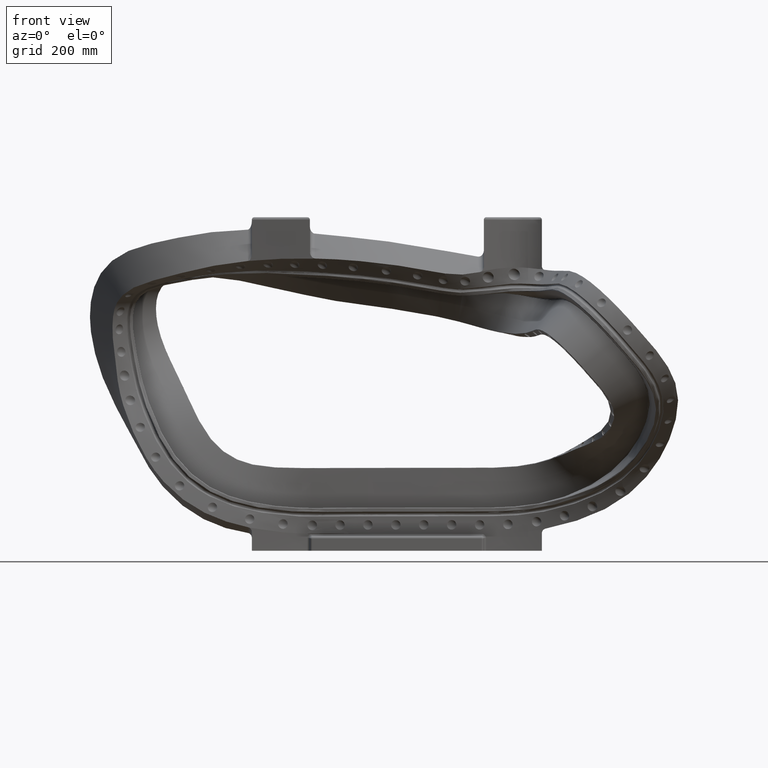
[diagram: clean part render]
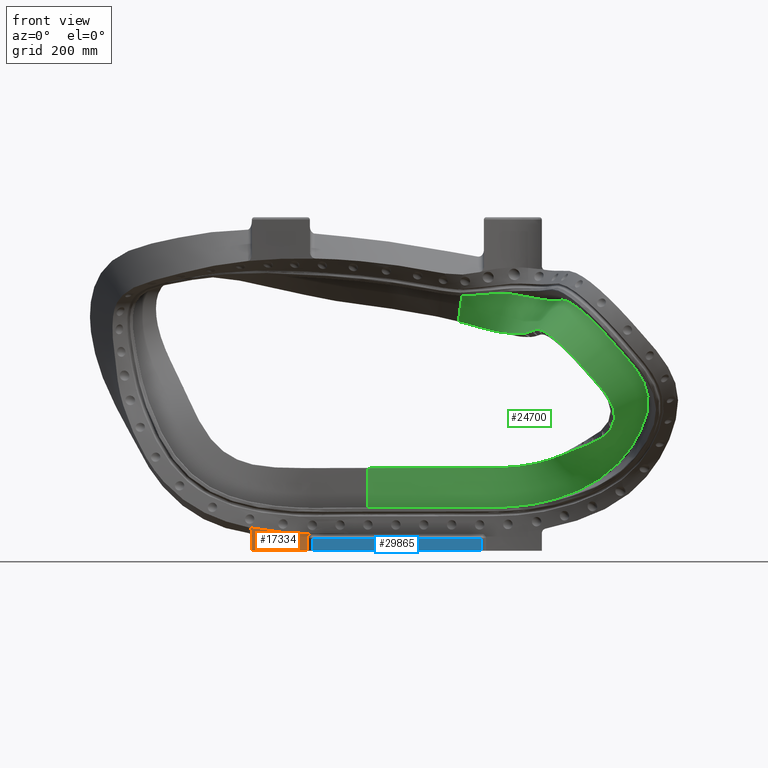
[diagram: same view with three faces highlighted in distinct colors, each labeled with its STEP entity id]
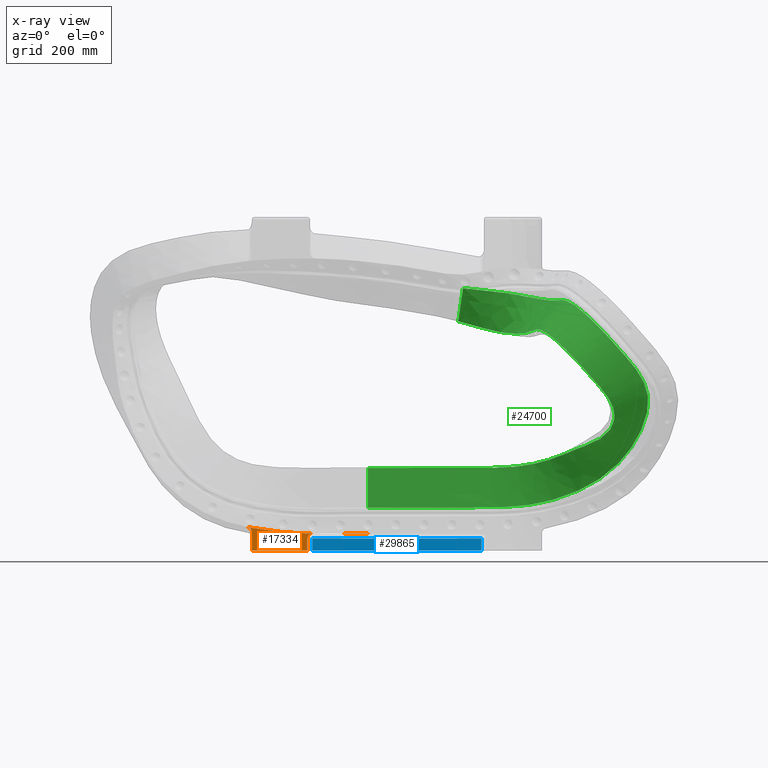
[diagram: x-ray of the same camera — body ghosted, the three highlighted faces saturated]
A machine part, front view with three faces highlighted in distinct colors.
The next image is the same camera in x-ray (body ghosted, the three faces saturated) — at least one of them is partly hidden behind the body in this view.
Their STEP definitions:

[orange] entity #17334 — the highlighted face is a SurfaceOfExtrusion surface.
#1130=CARTESIAN_POINT('',(6.633869642651E-3,-1.977049172209E0,
-1.570088924558E1));
#1961=CARTESIAN_POINT('',(-1.524058637604E0,-1.970531978263E0,
-1.570521095900E1));
#1962=CARTESIAN_POINT('',(-1.496021991823E0,-1.970852049172E0,
-1.570505768096E1));
#1963=CARTESIAN_POINT('',(-9.863184144507E-1,-1.976428644218E0,
-1.570212366842E1));
#1964=CARTESIAN_POINT('',(-4.758212423199E-1,-1.977570727684E0,
-1.570135270015E1));
#1965=CARTESIAN_POINT('',(6.633869642651E-3,-1.977049172209E0,
-1.570088924558E1));
#1967=CARTESIAN_POINT('',(-1.524058637604E0,-1.970531978263E0,
-1.570521095900E1));
#1968=CARTESIAN_POINT('',(-1.977823508163E0,-1.965351724679E0,
-1.570769171887E1));
#1969=CARTESIAN_POINT('',(-2.910966157197E0,-1.947589752213E0,
-1.571554917479E1));
#1970=CARTESIAN_POINT('',(-4.308576527693E0,-1.907689672695E0,
-1.573531920155E1));
#1971=CARTESIAN_POINT('',(-5.491112450047E0,-1.905281624804E0,
-1.574527169072E1));
#1972=CARTESIAN_POINT('',(-6.213062513903E0,-1.944512228271E0,
-1.573615508970E1));
#1973=CARTESIAN_POINT('',(-6.456287617938E0,-1.962434598659E0,
-1.573085528941E1));
#1975=CARTESIAN_POINT('',(-8.736462124929E0,-2.248535672561E0,
-1.560412003335E1));
#1976=CARTESIAN_POINT('',(-8.200656300199E0,-2.164108854057E0,
-1.565314848819E1));
#1977=CARTESIAN_POINT('',(-7.434383356327E0,-2.048440237838E0,
-1.570285805546E1));
#1978=CARTESIAN_POINT('',(-6.699007403185E0,-1.980319733949E0,
-1.572556649985E1));
#1979=CARTESIAN_POINT('',(-6.456287617938E0,-1.962434598659E0,
-1.573085528941E1));
#1981=CARTESIAN_POINT('',(-1.200000000015E1,-2.647033189302E0,
-1.514517763176E1));
#1982=CARTESIAN_POINT('',(-1.145361283427E1,-2.616051993306E0,
-1.525047488670E1));
#1983=CARTESIAN_POINT('',(-1.030305122192E1,-2.501717737579E0,
-1.543591313101E1));
#1984=CARTESIAN_POINT('',(-9.272441828146E0,-2.332989889064E0,
-1.555507566790E1));
#1985=CARTESIAN_POINT('',(-8.736462124929E0,-2.248535672561E0,
-1.560412003335E1));
#1987=CARTESIAN_POINT('',(-1.240259805060E1,-2.665795870534E0,
-1.506549918279E1));
#1988=CARTESIAN_POINT('',(-1.237528953494E1,-2.664808068633E0,
-1.507118487275E1));
#1989=CARTESIAN_POINT('',(-1.223762308059E1,-2.659564521791E0,
-1.509798818524E1));
#1990=CARTESIAN_POINT('',(-1.210579466065E1,-2.653031948638E0,
-1.512478936491E1));
#1991=CARTESIAN_POINT('',(-1.200000000015E1,-2.647033189302E0,
-1.514517763176E1));
#2065=DIRECTION('',(-1.531559234993E-9,2.400031942076E-8,-1.E0));
#2066=VECTOR('',#2065,1.249999999999E0);
#2067=CARTESIAN_POINT('',(-6.265921046707E0,-1.949419170606E0,-1.625E1));
#2068=LINE('',#2067,#2066);
#2069=DIRECTION('',(0.E0,-3.146995162287E-12,1.E0));
#2070=VECTOR('',#2069,1.936243220636E0);
#2071=CARTESIAN_POINT('',(-1.2E1,-2.647024992295E0,-1.75E1));
#2072=LINE('',#2071,#2070);
#2073=DIRECTION('',(1.268013437507E-3,-2.568267119068E-4,9.999991630906E-1));
#2074=VECTOR('',#2073,4.911079551889E-2);
#2075=CARTESIAN_POINT('',(6.571596494007E-3,-1.977036559245E0,-1.575E1));
#2076=LINE('',#2075,#2074);
#2077=CARTESIAN_POINT('',(6.571596494007E-3,-1.977036559245E0,-1.575E1));
#2078=CARTESIAN_POINT('',(-4.755956193564E-1,-1.977557528766E0,-1.575E1));
#2079=CARTESIAN_POINT('',(-1.438149512107E0,-1.975810008502E0,-1.575E1));
#2080=CARTESIAN_POINT('',(-2.876349262754E0,-1.947268892235E0,-1.575E1));
#2081=CARTESIAN_POINT('',(-4.306513704890E0,-1.912465072263E0,
-1.575000000001E1));
#2082=CARTESIAN_POINT('',(-5.267236932274E0,-1.895331262389E0,
-1.574999999998E1));
#2083=CARTESIAN_POINT('',(-5.750368697505E0,-1.923896965656E0,-1.575E1));
#2084=CARTESIAN_POINT('',(-5.759267295604E0,-1.924227663681E0,-1.575E1));
#2086=CARTESIAN_POINT('',(-6.265921046707E0,-1.949419170606E0,-1.625E1));
#2087=CARTESIAN_POINT('',(-6.265920580971E0,-1.949419442067E0,
-1.622502273582E1));
#2088=CARTESIAN_POINT('',(-6.262237611742E0,-1.949183281656E0,
-1.617385003149E1));
#2089=CARTESIAN_POINT('',(-6.242444727528E0,-1.947929128483E0,
-1.609130162909E1));
#2090=CARTESIAN_POINT('',(-6.206523883120E0,-1.945704867341E0,
-1.600929443438E1));
#2091=CARTESIAN_POINT('',(-6.154576729872E0,-1.942607445972E0,
-1.593269051651E1));
#2092=CARTESIAN_POINT('',(-6.088480295302E0,-1.938879642136E0,
-1.586612645808E1));
#2093=CARTESIAN_POINT('',(-6.010982056611E0,-1.934784245329E0,
-1.581279231011E1));
#2094=CARTESIAN_POINT('',(-5.926529040739E0,-1.930768283350E0,
-1.577516585714E1));
#2095=CARTESIAN_POINT('',(-5.840093104835E0,-1.926760113830E0,
-1.575401799421E1));
#2096=CARTESIAN_POINT('',(-5.785892567050E0,-1.925217535012E0,
-1.575000051220E1));
#2097=CARTESIAN_POINT('',(-5.759267295604E0,-1.924227663681E0,-1.575E1));
#6934=CARTESIAN_POINT('',(-1.240259805060E1,-2.665795870534E0,
-1.506549918279E1));
#7265=CARTESIAN_POINT('',(-1.240259805060E1,-2.665795870534E0,
-1.506549918279E1));
#7266=CARTESIAN_POINT('',(-1.235784088946E1,-2.664179526992E0,
-1.507481743922E1));
#7267=CARTESIAN_POINT('',(-1.226962819016E1,-2.660668391725E0,
-1.510537353191E1));
#7268=CARTESIAN_POINT('',(-1.215714685356E1,-2.655429812906E0,
-1.518598117435E1));
#7269=CARTESIAN_POINT('',(-1.206917701766E1,-2.650885646823E0,
-1.529399363753E1));
#7270=CARTESIAN_POINT('',(-1.201267457428E1,-2.647752351809E0,
-1.542425525027E1));
#7271=CARTESIAN_POINT('',(-1.2E1,-2.647024992301E0,-1.551725603750E1));
#7272=CARTESIAN_POINT('',(-1.2E1,-2.647024992301E0,-1.556375677936E1));
#7283=CARTESIAN_POINT('',(-1.2E1,-2.647024992301E0,-1.556375677936E1));
#7336=CARTESIAN_POINT('',(-1.2E1,-2.647024992295E0,-1.75E1));
#7337=CARTESIAN_POINT('',(-1.147515806822E1,-2.617162721085E0,-1.75E1));
#7338=CARTESIAN_POINT('',(-1.065975321890E1,-2.538681203800E0,-1.75E1));
#7339=CARTESIAN_POINT('',(-9.574770886855E0,-2.382282303911E0,-1.75E1));
#7340=CARTESIAN_POINT('',(-8.498140849961E0,-2.209587277860E0,-1.75E1));
#7341=CARTESIAN_POINT('',(-7.402576861671E0,-2.042113127539E0,-1.75E1));
#7342=CARTESIAN_POINT('',(-6.575390467964E0,-1.969167538538E0,-1.75E1));
#7343=CARTESIAN_POINT('',(-6.265921048622E0,-1.949419140605E0,-1.75E1));
#12441=CARTESIAN_POINT('',(-1.2E1,-2.647024992295E0,-1.75E1));
#12443=VERTEX_POINT('',#12441);
#12444=VERTEX_POINT('',#1967);
#12445=VERTEX_POINT('',#1973);
#12446=VERTEX_POINT('',#1975);
#12458=VERTEX_POINT('',#1130);
#12507=VERTEX_POINT('',#6934);
#12509=VERTEX_POINT('',#7283);
#12511=VERTEX_POINT('',#1991);
#12548=CARTESIAN_POINT('',(-6.265921046707E0,-1.949419170606E0,-1.625E1));
#12549=CARTESIAN_POINT('',(-6.265921048622E0,-1.949419140605E0,-1.75E1));
#12550=VERTEX_POINT('',#12548);
#12551=VERTEX_POINT('',#12549);
#12554=VERTEX_POINT('',#2077);
#12555=VERTEX_POINT('',#2084);
#17295=CARTESIAN_POINT('',(1.311590125153E-1,-1.976880632687E0,-1.75E1));
#17296=CARTESIAN_POINT('',(8.967150450688E-2,-1.976947593488E0,-1.75E1));
#17297=CARTESIAN_POINT('',(-4.340237439329E-1,-1.977662825170E0,-1.75E1));
#17298=CARTESIAN_POINT('',(-1.438124304033E0,-1.975425834373E0,-1.75E1));
#17299=CARTESIAN_POINT('',(-2.876292679866E0,-1.948586517986E0,-1.75E1));
#17300=CARTESIAN_POINT('',(-4.306721503954E0,-1.907631379646E0,-1.75E1));
#17301=CARTESIAN_POINT('',(-5.746072482765E0,-1.904990248919E0,-1.75E1));
#17302=CARTESIAN_POINT('',(-7.226584618145E0,-2.015209950945E0,-1.75E1));
#17303=CARTESIAN_POINT('',(-8.498140849961E0,-2.209587277860E0,-1.75E1));
#17304=CARTESIAN_POINT('',(-9.574770886855E0,-2.382282303911E0,-1.75E1));
#17305=CARTESIAN_POINT('',(-1.065975321890E1,-2.538681203800E0,-1.75E1));
#17306=CARTESIAN_POINT('',(-1.165131106074E1,-2.634117187495E0,-1.75E1));
#17307=CARTESIAN_POINT('',(-1.235313366270E1,-2.664786272282E0,-1.75E1));
#17308=CARTESIAN_POINT('',(-1.252983186009E1,-2.669998999699E0,-1.75E1));
#17310=DIRECTION('',(0.E0,0.E0,1.E0));
#17311=VECTOR('',#17310,1.E0);
#17312=SURFACE_OF_LINEAR_EXTRUSION('',#17309,#17311);
#17314=ORIENTED_EDGE('',*,*,#17313,.T.);
#17316=ORIENTED_EDGE('',*,*,#17315,.F.);
#17318=ORIENTED_EDGE('',*,*,#17317,.T.);
#17320=ORIENTED_EDGE('',*,*,#17319,.F.);
#17321=ORIENTED_EDGE('',*,*,#16637,.T.);
#17322=ORIENTED_EDGE('',*,*,#16635,.T.);
#17323=ORIENTED_EDGE('',*,*,#16633,.T.);
#17324=ORIENTED_EDGE('',*,*,#16631,.F.);
#17325=ORIENTED_EDGE('',*,*,#16629,.T.);
#17327=ORIENTED_EDGE('',*,*,#17326,.F.);
#17329=ORIENTED_EDGE('',*,*,#17328,.T.);
#17331=ORIENTED_EDGE('',*,*,#17330,.F.);
#17332=EDGE_LOOP('',(#17314,#17316,#17318,#17320,#17321,#17322,#17323,#17324,
#17325,#17327,#17329,#17331));
#17333=FACE_OUTER_BOUND('',#17332,.F.);
#17334=ADVANCED_FACE('',(#17333),#17312,.F.);
#1966=B_SPLINE_CURVE_WITH_KNOTS('',3,(#1961,#1962,#1963,#1964,#1965),
.UNSPECIFIED.,.F.,.F.,(4,1,4),(0.E0,5.503152349906E-2,1.E0),.UNSPECIFIED.);
#1974=B_SPLINE_CURVE_WITH_KNOTS('',3,(#1967,#1968,#1969,#1970,#1971,#1972,
#1973),.UNSPECIFIED.,.F.,.F.,(4,1,1,1,4),(0.E0,2.737381605268E-1,
5.642196854171E-1,8.545725810915E-1,1.E0),.UNSPECIFIED.);
#1980=B_SPLINE_CURVE_WITH_KNOTS('',3,(#1975,#1976,#1977,#1978,#1979),
.UNSPECIFIED.,.F.,.F.,(4,1,4),(0.E0,6.667935385238E-1,1.E0),.UNSPECIFIED.);
#1986=B_SPLINE_CURVE_WITH_KNOTS('',3,(#1981,#1982,#1983,#1984,#1985),
.UNSPECIFIED.,.F.,.F.,(4,1,4),(0.E0,4.557097369019E-1,1.E0),.UNSPECIFIED.);
#1992=B_SPLINE_CURVE_WITH_KNOTS('',3,(#1987,#1988,#1989,#1990,#1991),
.UNSPECIFIED.,.F.,.F.,(4,1,4),(0.E0,2.020968347580E-1,1.E0),.UNSPECIFIED.);
#2085=B_SPLINE_CURVE_WITH_KNOTS('',3,(#2077,#2078,#2079,#2080,#2081,#2082,#2083,
#2084),.UNSPECIFIED.,.F.,.F.,(4,1,1,1,1,4),(0.E0,2.508461314376E-1,
5.007609961811E-1,7.482724281580E-1,9.953679535417E-1,1.E0),.UNSPECIFIED.);
#2098=B_SPLINE_CURVE_WITH_KNOTS('',3,(#2086,#2087,#2088,#2089,#2090,#2091,#2092,
#2093,#2094,#2095,#2096,#2097),.UNSPECIFIED.,.F.,.F.,(4,1,1,1,1,1,1,1,1,4),
(0.E0,1.111111111111E-1,2.222222222222E-1,3.333333333333E-1,4.444444444444E-1,
5.555555555556E-1,6.666666666667E-1,7.777777777778E-1,8.888888888889E-1,1.E0),
.UNSPECIFIED.);
#7273=B_SPLINE_CURVE_WITH_KNOTS('',3,(#7265,#7266,#7267,#7268,#7269,#7270,#7271,
#7272),.UNSPECIFIED.,.F.,.F.,(4,1,1,1,1,4),(0.E0,2.E-1,4.E-1,6.E-1,8.E-1,1.E0),
.UNSPECIFIED.);
#7344=B_SPLINE_CURVE_WITH_KNOTS('',3,(#7336,#7337,#7338,#7339,#7340,#7341,#7342,
#7343),.UNSPECIFIED.,.F.,.F.,(4,1,1,1,1,4),(0.E0,2.728814048408E-1,
4.248065996874E-1,5.691375269458E-1,8.390431496893E-1,1.E0),.UNSPECIFIED.);
#16629=EDGE_CURVE('',#12444,#12458,#1966,.T.);
#16631=EDGE_CURVE('',#12444,#12445,#1974,.T.);
#16633=EDGE_CURVE('',#12446,#12445,#1980,.T.);
#16635=EDGE_CURVE('',#12511,#12446,#1986,.T.);
#16637=EDGE_CURVE('',#12507,#12511,#1992,.T.);
#17309=B_SPLINE_CURVE_WITH_KNOTS('',3,(#17295,#17296,#17297,#17298,#17299,
#17300,#17301,#17302,#17303,#17304,#17305,#17306,#17307,#17308),.UNSPECIFIED.,
.F.,.F.,(4,1,1,1,1,1,1,1,1,1,1,4),(0.E0,9.795162946880E-3,1.236435943627E-1,
2.370595985496E-1,3.493848803381E-1,4.615214159950E-1,5.767302579514E-1,
6.994645522518E-1,7.650962138775E-1,8.341812199118E-1,9.582686928232E-1,1.E0),
.UNSPECIFIED.);
#17313=EDGE_CURVE('',#12550,#12551,#2068,.T.);
#17315=EDGE_CURVE('',#12443,#12551,#7344,.T.);
#17317=EDGE_CURVE('',#12443,#12509,#2072,.T.);
#17319=EDGE_CURVE('',#12507,#12509,#7273,.T.);
#17326=EDGE_CURVE('',#12554,#12458,#2076,.T.);
#17328=EDGE_CURVE('',#12554,#12555,#2085,.T.);
#17330=EDGE_CURVE('',#12550,#12555,#2098,.T.);

[blue] entity #29865 — the highlighted planar face has unit normal (0, -1, 0).
#7354=DIRECTION('',(-1.E0,0.E0,0.E0));
#7355=VECTOR('',#7354,1.75E1);
#7356=CARTESIAN_POINT('',(1.175E1,-4.5E0,-1.75E1));
#7357=LINE('',#7356,#7355);
#7521=DIRECTION('',(0.E0,0.E0,1.E0));
#7522=VECTOR('',#7521,1.25E0);
#7523=CARTESIAN_POINT('',(-5.75E0,-4.5E0,-1.75E1));
#7524=LINE('',#7523,#7522);
#7525=DIRECTION('',(1.E0,0.E0,0.E0));
#7526=VECTOR('',#7525,1.75E1);
#7527=CARTESIAN_POINT('',(-5.75E0,-4.5E0,-1.625E1));
#7528=LINE('',#7527,#7526);
#7529=DIRECTION('',(0.E0,0.E0,1.E0));
#7530=VECTOR('',#7529,1.25E0);
#7531=CARTESIAN_POINT('',(1.175E1,-4.5E0,-1.75E1));
#7532=LINE('',#7531,#7530);
#12524=CARTESIAN_POINT('',(-5.75E0,-4.5E0,-1.75E1));
#12525=CARTESIAN_POINT('',(-5.75E0,-4.5E0,-1.625E1));
#12526=VERTEX_POINT('',#12524);
#12527=VERTEX_POINT('',#12525);
#12528=CARTESIAN_POINT('',(1.175E1,-4.5E0,-1.75E1));
#12529=CARTESIAN_POINT('',(1.175E1,-4.5E0,-1.625E1));
#12530=VERTEX_POINT('',#12528);
#12531=VERTEX_POINT('',#12529);
#29852=CARTESIAN_POINT('',(1.2E1,-4.5E0,-1.75E1));
#29853=DIRECTION('',(0.E0,-1.E0,0.E0));
#29854=DIRECTION('',(-1.E0,0.E0,0.E0));
#29855=AXIS2_PLACEMENT_3D('',#29852,#29853,#29854);
#29856=PLANE('',#29855);
#29858=ORIENTED_EDGE('',*,*,#29857,.T.);
#29860=ORIENTED_EDGE('',*,*,#29859,.T.);
#29861=ORIENTED_EDGE('',*,*,#29843,.F.);
#29862=ORIENTED_EDGE('',*,*,#29712,.T.);
#29863=EDGE_LOOP('',(#29858,#29860,#29861,#29862));
#29864=FACE_OUTER_BOUND('',#29863,.F.);
#29865=ADVANCED_FACE('',(#29864),#29856,.T.);
#29712=EDGE_CURVE('',#12530,#12526,#7357,.T.);
#29843=EDGE_CURVE('',#12530,#12531,#7532,.T.);
#29857=EDGE_CURVE('',#12526,#12527,#7524,.T.);
#29859=EDGE_CURVE('',#12527,#12531,#7528,.T.);

[green] entity #24700 — the highlighted face is a freeform B-spline surface patch.
#5556=CARTESIAN_POINT('',(-2.440734990011E-3,-3.746051807750E-1,
-8.953658931555E0));
#5557=CARTESIAN_POINT('',(8.685037972877E-2,-3.746055360460E-1,
-8.953550051578E0));
#5558=CARTESIAN_POINT('',(3.546807523685E-1,-3.746205007015E-1,
-8.953229397354E0));
#5559=CARTESIAN_POINT('',(8.902464262214E-1,-3.747107721526E-1,
-8.952601086036E0));
#5560=CARTESIAN_POINT('',(1.604080868140E0,-3.748627749791E-1,
-8.951691298588E0));
#5561=CARTESIAN_POINT('',(2.406994381400E0,-3.749364110344E-1,
-8.950419952992E0));
#5562=CARTESIAN_POINT('',(3.209920955685E0,-3.750276862451E-1,
-8.948930336478E0));
#5563=CARTESIAN_POINT('',(4.013014964831E0,-3.752111491395E-1,
-8.947268097503E0));
#5564=CARTESIAN_POINT('',(4.816364759469E0,-3.756148546448E-1,
-8.945523182799E0));
#5565=CARTESIAN_POINT('',(5.620201876316E0,-3.761362784271E-1,
-8.943848698686E0));
#5566=CARTESIAN_POINT('',(6.424853653039E0,-3.766007591824E-1,
-8.942430807503E0));
#5567=CARTESIAN_POINT('',(7.230547258425E0,-3.763567159772E-1,
-8.941562481816E0));
#5568=CARTESIAN_POINT('',(8.037469952152E0,-3.746807080205E-1,
-8.941544480528E0));
#5569=CARTESIAN_POINT('',(8.844878012355E0,-3.706232810045E-1,
-8.942582173818E0));
#5570=CARTESIAN_POINT('',(9.651651117424E0,-3.638050438902E-1,
-8.944642866435E0));
#5571=CARTESIAN_POINT('',(1.045514834662E1,-3.552440358417E-1,
-8.947119126169E0));
#5572=CARTESIAN_POINT('',(1.125253974364E1,-3.476355010723E-1,
-8.948681338352E0));
#5573=CARTESIAN_POINT('',(1.204020446638E1,-3.460079543170E-1,
-8.947102697867E0));
#5574=CARTESIAN_POINT('',(1.281482024822E1,-3.565774769020E-1,
-8.939234902081E0));
#5575=CARTESIAN_POINT('',(1.357293652932E1,-3.867068664436E-1,
-8.921263011813E0));
#5576=CARTESIAN_POINT('',(1.431176013926E1,-4.432765965381E-1,
-8.889151198038E0));
#5577=CARTESIAN_POINT('',(1.502859754934E1,-5.331179249962E-1,
-8.838834290221E0));
#5578=CARTESIAN_POINT('',(1.572255613950E1,-6.616596514144E-1,
-8.767344705131E0));
#5579=CARTESIAN_POINT('',(1.639274305059E1,-8.338789875421E-1,
-8.672444287417E0));
#5580=CARTESIAN_POINT('',(1.703941039863E1,-1.053685317727E0,
-8.553856049905E0));
#5581=CARTESIAN_POINT('',(1.766150477383E1,-1.323787947603E0,
-8.412729555779E0));
#5582=CARTESIAN_POINT('',(1.825684703503E1,-1.645773412630E0,
-8.252137852626E0));
#5583=CARTESIAN_POINT('',(1.882289642795E1,-2.018826012437E0,
-8.076322070466E0));
#5584=CARTESIAN_POINT('',(1.935654592147E1,-2.440824314801E0,
-7.890428123269E0));
#5585=CARTESIAN_POINT('',(1.985732248368E1,-2.908384028279E0,
-7.699654106260E0));
#5586=CARTESIAN_POINT('',(2.032534733779E1,-3.417721568645E0,
-7.509233187517E0));
#5587=CARTESIAN_POINT('',(2.076379902450E1,-3.965132353413E0,
-7.324348962231E0));
#5588=CARTESIAN_POINT('',(2.117638409663E1,-4.546284445890E0,
-7.149472850260E0));
#5589=CARTESIAN_POINT('',(2.156895577293E1,-5.155300869647E0,
-6.988316026555E0));
#5590=CARTESIAN_POINT('',(2.194679758131E1,-5.785398097699E0,
-6.841117573209E0));
#5591=CARTESIAN_POINT('',(2.231564481558E1,-6.427405683878E0,
-6.704687214293E0));
#5592=CARTESIAN_POINT('',(2.267756516254E1,-7.075070066345E0,
-6.572248173100E0));
#5593=CARTESIAN_POINT('',(2.303302963362E1,-7.722284533488E0,
-6.434562192600E0));
#5594=CARTESIAN_POINT('',(2.337922916766E1,-8.368562928387E0,
-6.284974304588E0));
#5595=CARTESIAN_POINT('',(2.371260272463E1,-9.014131810413E0,
-6.117355325705E0));
#5596=CARTESIAN_POINT('',(2.402942598342E1,-9.660939684477E0,
-5.929976646995E0));
#5597=CARTESIAN_POINT('',(2.432594902494E1,-1.031034878404E1,
-5.721687731320E0));
#5598=CARTESIAN_POINT('',(2.459853521938E1,-1.096252521505E1,
-5.493434701115E0));
#5599=CARTESIAN_POINT('',(2.484351043443E1,-1.161722363204E1,
-5.246412136676E0));
#5600=CARTESIAN_POINT('',(2.505708409619E1,-1.227344655123E1,
-4.982525101979E0));
#5601=CARTESIAN_POINT('',(2.523592879323E1,-1.293049031313E1,
-4.703671711623E0));
#5602=CARTESIAN_POINT('',(2.537684440219E1,-1.358766640459E1,
-4.411895059678E0));
#5603=CARTESIAN_POINT('',(2.547738763751E1,-1.424435290768E1,
-4.108716887730E0));
#5604=CARTESIAN_POINT('',(2.553523453839E1,-1.489991321795E1,
-3.795423228217E0));
#5605=CARTESIAN_POINT('',(2.554827753664E1,-1.555365125383E1,
-3.471944752545E0));
#5606=CARTESIAN_POINT('',(2.551434666738E1,-1.620464788301E1,
-3.137416002328E0));
#5607=CARTESIAN_POINT('',(2.543078791594E1,-1.685076977817E1,
-2.789158697565E0));
#5608=CARTESIAN_POINT('',(2.529492467324E1,-1.748658841755E1,
-2.425205484797E0));
#5609=CARTESIAN_POINT('',(2.510312513613E1,-1.810829274479E1,
-2.041893639015E0));
#5610=CARTESIAN_POINT('',(2.484949699112E1,-1.871604555432E1,
-1.628154556506E0));
#5611=CARTESIAN_POINT('',(2.453367629209E1,-1.928605241127E1,
-1.182361783501E0));
#5612=CARTESIAN_POINT('',(2.417254560678E1,-1.978689090686E1,
-7.325381902688E-1));
#5613=CARTESIAN_POINT('',(2.372762007482E1,-2.027490762310E1,
-2.359641086619E-1));
#5614=CARTESIAN_POINT('',(2.315283319671E1,-2.071719125259E1,
4.089750563394E-1));
#5615=CARTESIAN_POINT('',(2.257119902557E1,-2.095708451183E1,1.085363346612E0));
#5616=CARTESIAN_POINT('',(2.200574473141E1,-2.104534270764E1,1.721767906400E0));
#5617=CARTESIAN_POINT('',(2.141008349086E1,-2.099974479578E1,2.362763102891E0));
#5618=CARTESIAN_POINT('',(2.081511903742E1,-2.080433822193E1,2.982455542401E0));
#5619=CARTESIAN_POINT('',(2.024962522075E1,-2.047697626777E1,3.546809624858E0));
#5620=CARTESIAN_POINT('',(1.971890191753E1,-2.003385160518E1,4.044478664635E0));
#5621=CARTESIAN_POINT('',(1.922972099726E1,-1.948824303043E1,4.468934600930E0));
#5622=CARTESIAN_POINT('',(1.879136980747E1,-1.885777992463E1,4.812472803511E0));
#5623=CARTESIAN_POINT('',(1.840864395069E1,-1.816116652394E1,5.074498028064E0));
#5624=CARTESIAN_POINT('',(1.808413136485E1,-1.741680171172E1,5.256891322357E0));
#5625=CARTESIAN_POINT('',(1.781680788434E1,-1.664323233260E1,5.366819196650E0));
#5626=CARTESIAN_POINT('',(1.760060298345E1,-1.585673116874E1,5.414146964204E0));
#5627=CARTESIAN_POINT('',(1.742577232704E1,-1.507276657120E1,5.411655375707E0));
#5628=CARTESIAN_POINT('',(1.727748186812E1,-1.430166319332E1,5.372767851796E0));
#5629=CARTESIAN_POINT('',(1.713910582710E1,-1.355251523175E1,5.311508913991E0));
#5630=CARTESIAN_POINT('',(1.699295227801E1,-1.282666507898E1,5.238366705586E0));
#5631=CARTESIAN_POINT('',(1.682252817132E1,-1.212690965715E1,5.163488043675E0));
#5632=CARTESIAN_POINT('',(1.661461557677E1,-1.145206288168E1,5.093075371490E0));
#5633=CARTESIAN_POINT('',(1.635734451329E1,-1.079263988434E1,5.031268460812E0));
#5634=CARTESIAN_POINT('',(1.604462478134E1,-1.014631138348E1,4.982372721223E0));
#5635=CARTESIAN_POINT('',(1.567174471439E1,-9.506695078353E0,4.950867102576E0));
#5636=CARTESIAN_POINT('',(1.523952089371E1,-8.875239815515E0,4.942790514816E0));
#5637=CARTESIAN_POINT('',(1.475203193661E1,-8.256830448701E0,4.963616093747E0));
#5638=CARTESIAN_POINT('',(1.421366571310E1,-7.655531071264E0,5.018429127815E0));
#5639=CARTESIAN_POINT('',(1.362897832579E1,-7.080600023719E0,5.110223709978E0));
#5640=CARTESIAN_POINT('',(1.300214467453E1,-6.541683917113E0,5.240414232572E0));
#5641=CARTESIAN_POINT('',(1.233603126239E1,-6.052275925452E0,5.404969896725E0));
#5642=CARTESIAN_POINT('',(1.163417337130E1,-5.623280237350E0,5.597366918683E0));
#5643=CARTESIAN_POINT('',(1.090009246223E1,-5.264378314182E0,5.805859911814E0));
#5644=CARTESIAN_POINT('',(1.022531971754E1,-5.011162002903E0,5.996019602875E0));
#5645=CARTESIAN_POINT('',(9.704825308672E0,-4.861367635068E0,6.136876549693E0));
#5646=CARTESIAN_POINT('',(9.446232235200E0,-4.799281257063E0,6.204655469755E0));
#5647=CARTESIAN_POINT('',(9.358719343813E0,-4.779640769055E0,6.227310483040E0));
#5742=CARTESIAN_POINT('',(2.803794982273E-3,-3.791268805507E-1,
-1.305265308253E1));
#5743=CARTESIAN_POINT('',(4.845449088321E-1,-3.788110290860E-1,
-1.305206651714E1));
#5744=CARTESIAN_POINT('',(1.447825007900E0,-3.763722327611E-1,
-1.305100270542E1));
#5745=CARTESIAN_POINT('',(2.892407884650E0,-3.744328261593E-1,
-1.304862929315E1));
#5746=CARTESIAN_POINT('',(4.336185934433E0,-3.751027384489E-1,
-1.304559557614E1));
#5747=CARTESIAN_POINT('',(5.780042262547E0,-3.762163190966E-1,
-1.304243569602E1));
#5748=CARTESIAN_POINT('',(7.222070837610E0,-3.753996458072E-1,
-1.304025006607E1));
#5749=CARTESIAN_POINT('',(8.661818371620E0,-3.710201324489E-1,
-1.304082069203E1));
#5750=CARTESIAN_POINT('',(1.010171525318E1,-3.634774843048E-1,
-1.304503592803E1));
#5751=CARTESIAN_POINT('',(1.155134604241E1,-3.563244650480E-1,
-1.304909330676E1));
#5752=CARTESIAN_POINT('',(1.302280835527E1,-3.618258698109E-1,
-1.303980197497E1));
#5753=CARTESIAN_POINT('',(1.452570259789E1,-4.119290778587E-1,
-1.299149558205E1));
#5754=CARTESIAN_POINT('',(1.605536504775E1,-5.591816742749E-1,
-1.286845991880E1));
#5755=CARTESIAN_POINT('',(1.757990232228E1,-8.517605063562E-1,
-1.263963918418E1));
#5756=CARTESIAN_POINT('',(1.905419347406E1,-1.295740817950E0,
-1.229809734913E1));
#5757=CARTESIAN_POINT('',(2.045779892727E1,-1.860586711791E0,
-1.185390095916E1));
#5758=CARTESIAN_POINT('',(2.179140511124E1,-2.517801747781E0,
-1.131221159745E1));
#5759=CARTESIAN_POINT('',(2.305324904768E1,-3.247195308599E0,
-1.067053906392E1));
#5760=CARTESIAN_POINT('',(2.423721046138E1,-4.027783244736E0,
-9.921925453411E0));
#5761=CARTESIAN_POINT('',(2.532723389271E1,-4.855046250859E0,
-9.058646715361E0));
#5762=CARTESIAN_POINT('',(2.628832241969E1,-5.756826225420E0,
-8.097807208067E0));
#5763=CARTESIAN_POINT('',(2.709312570128E1,-6.764659501380E0,
-7.090265898009E0));
#5764=CARTESIAN_POINT('',(2.773915453170E1,-7.874460851561E0,
-6.086919499067E0));
#5765=CARTESIAN_POINT('',(2.824139044982E1,-9.064123916108E0,-5.113886568E0));
#5766=CARTESIAN_POINT('',(2.861796628887E1,-1.031893048152E1,
-4.179251224564E0));
#5767=CARTESIAN_POINT('',(2.887754162936E1,-1.163328992391E1,
-3.280207610145E0));
#5768=CARTESIAN_POINT('',(2.901294939019E1,-1.299824151303E1,
-2.408132023528E0));
#5769=CARTESIAN_POINT('',(2.900587863583E1,-1.415276983046E1,
-1.698179247495E0));
#5770=CARTESIAN_POINT('',(2.891662297665E1,-1.508262281175E1,
-1.124134386396E0));
#5771=CARTESIAN_POINT('',(2.880611618225E1,-1.576409389608E1,
-6.961534040154E-1));
#5772=CARTESIAN_POINT('',(2.864443827554E1,-1.644999952594E1,
-2.511482309189E-1));
#5773=CARTESIAN_POINT('',(2.843920080127E1,-1.709843173712E1,
1.887921360294E-1));
#5774=CARTESIAN_POINT('',(2.817915762431E1,-1.773613164038E1,
6.477768993623E-1));
#5775=CARTESIAN_POINT('',(2.788099180065E1,-1.831570680600E1,1.102580540626E0));
#5776=CARTESIAN_POINT('',(2.759018636085E1,-1.876863773399E1,1.499783446920E0));
#5777=CARTESIAN_POINT('',(2.733404451079E1,-1.911353139067E1,1.824403965260E0));
#5778=CARTESIAN_POINT('',(2.712877888145E1,-1.936356555974E1,2.071605811736E0));
#5779=CARTESIAN_POINT('',(2.691516984527E1,-1.959994251208E1,2.316876043054E0));
#5780=CARTESIAN_POINT('',(2.670544879662E1,-1.980687867083E1,2.551149959713E0));
#5781=CARTESIAN_POINT('',(2.652307521218E1,-1.996252057353E1,2.752780083030E0));
#5782=CARTESIAN_POINT('',(2.637234333541E1,-2.007474548315E1,2.920159126264E0));
#5783=CARTESIAN_POINT('',(2.626268819216E1,-2.014760540481E1,3.042809659971E0));
#5784=CARTESIAN_POINT('',(2.615501869451E1,-2.021111239905E1,3.164501321678E0));
#5785=CARTESIAN_POINT('',(2.601200047658E1,-2.028675803023E1,3.327251414034E0));
#5786=CARTESIAN_POINT('',(2.582121523010E1,-2.036981073952E1,3.545925918990E0));
#5787=CARTESIAN_POINT('',(2.557333963610E1,-2.044867726438E1,3.830009281585E0));
#5788=CARTESIAN_POINT('',(2.531978753450E1,-2.050075967338E1,4.117721600038E0));
#5789=CARTESIAN_POINT('',(2.505924204440E1,-2.052801437257E1,4.407602518930E0));
#5790=CARTESIAN_POINT('',(2.471085347564E1,-2.053087215448E1,4.788572055707E0));
#5791=CARTESIAN_POINT('',(2.427423196199E1,-2.046698560831E1,5.254073418871E0));
#5792=CARTESIAN_POINT('',(2.374780060690E1,-2.027620649413E1,5.799899977303E0));
#5793=CARTESIAN_POINT('',(2.323964294210E1,-1.998452606280E1,6.306909521524E0));
#5794=CARTESIAN_POINT('',(2.273575998207E1,-1.958471941127E1,6.783226232752E0));
#5795=CARTESIAN_POINT('',(2.210886086974E1,-1.894221467840E1,7.339010796823E0));
#5796=CARTESIAN_POINT('',(2.141073593309E1,-1.793813716354E1,7.881186969211E0));
#5797=CARTESIAN_POINT('',(2.076131370782E1,-1.655967219968E1,8.265335656689E0));
#5798=CARTESIAN_POINT('',(2.028156102576E1,-1.510023961365E1,8.431134591662E0));
#5799=CARTESIAN_POINT('',(1.990820711939E1,-1.361757012756E1,8.449273435336E0));
#5800=CARTESIAN_POINT('',(1.959660654345E1,-1.239663426780E1,8.409832149672E0));
#5801=CARTESIAN_POINT('',(1.926978828718E1,-1.143477090715E1,8.390112049137E0));
#5802=CARTESIAN_POINT('',(1.887297901113E1,-1.050393102230E1,8.390388988823E0));
#5803=CARTESIAN_POINT('',(1.833641129849E1,-9.651238299422E0,8.442344671616E0));
#5804=CARTESIAN_POINT('',(1.766510862379E1,-8.938996343713E0,8.550234175186E0));
#5805=CARTESIAN_POINT('',(1.691828617843E1,-8.329282244943E0,8.686799501324E0));
#5806=CARTESIAN_POINT('',(1.586354230631E1,-7.767326175047E0,8.893684436871E0));
#5807=CARTESIAN_POINT('',(1.451822577367E1,-7.375878904040E0,9.124968809298E0));
#5808=CARTESIAN_POINT('',(1.314377369933E1,-7.174968290850E0,9.300400795136E0));
#5809=CARTESIAN_POINT('',(1.177855771146E1,-7.067271664849E0,9.432489871530E0));
#5810=CARTESIAN_POINT('',(1.068101289215E1,-7.006935858809E0,9.546646055271E0));
#5811=CARTESIAN_POINT('',(1.003579183844E1,-6.980051998457E0,9.629854862621E0));
#5812=CARTESIAN_POINT('',(9.835275802231E0,-6.972677031816E0,9.657393846874E0));
#5891=DIRECTION('',(1.162609990135E-1,-5.350144401094E-1,8.368051917757E-1));
#5892=VECTOR('',#5891,4.099022565283E0);
#5893=CARTESIAN_POINT('',(9.358719343813E0,-4.779640769055E0,6.227310483040E0));
#5894=LINE('',#5893,#5892);
#6155=DIRECTION('',(1.279465716563E-3,-1.103122658102E-3,-9.999985730429E-1));
#6156=VECTOR('',#6155,4.099000000071E0);
#6157=CARTESIAN_POINT('',(-2.440734990011E-3,-3.746051807750E-1,
-8.953658931555E0));
#6158=LINE('',#6157,#6156);
#12352=VERTEX_POINT('',#5556);
#12353=VERTEX_POINT('',#5647);
#12422=VERTEX_POINT('',#5742);
#12423=VERTEX_POINT('',#5812);
#24398=CARTESIAN_POINT('',(-6.795165264905E-1,-3.746078169130E-1,
-8.857580762696E0));
#24399=CARTESIAN_POINT('',(-6.777423525725E-1,-3.760556846239E-1,
-1.028855040298E1));
#24400=CARTESIAN_POINT('',(-6.759681786545E-1,-3.775035523347E-1,
-1.171952004326E1));
#24401=CARTESIAN_POINT('',(-6.741940047365E-1,-3.789514200456E-1,
-1.315048968354E1));
#24402=CARTESIAN_POINT('',(-4.537963997513E-1,-3.745226750310E-1,
-8.857263393568E0));
#24403=CARTESIAN_POINT('',(-4.520251278143E-1,-3.761261564020E-1,
-1.028823291453E1));
#24404=CARTESIAN_POINT('',(-4.502538558773E-1,-3.777296377729E-1,
-1.171920243550E1));
#24405=CARTESIAN_POINT('',(-4.484825839403E-1,-3.793331191439E-1,
-1.315017195647E1));
#24406=CARTESIAN_POINT('',(2.534769798610E-1,-3.744312066904E-1,
-8.856364748460E0));
#24407=CARTESIAN_POINT('',(2.553133045123E-1,-3.761197427319E-1,
-1.028733417186E1));
#24408=CARTESIAN_POINT('',(2.571496291635E-1,-3.778082787733E-1,
-1.171830359526E1));
#24409=CARTESIAN_POINT('',(2.589859538148E-1,-3.794968148148E-1,
-1.314927301865E1));
#24410=CARTESIAN_POINT('',(1.441291430894E0,-3.748374868019E-1,
-8.855050236368E0));
#24411=CARTESIAN_POINT('',(1.443519614423E0,-3.753608900867E-1,
-1.028602015898E1));
#24412=CARTESIAN_POINT('',(1.445747797953E0,-3.758842933715E-1,
-1.171699008159E1));
#24413=CARTESIAN_POINT('',(1.447975981482E0,-3.764076966563E-1,
-1.314796000419E1));
#24414=CARTESIAN_POINT('',(2.884226755898E0,-3.749720576538E-1,
-8.852680040711E0));
#24415=CARTESIAN_POINT('',(2.887016813522E0,-3.747881604206E-1,
-1.028364886634E1));
#24416=CARTESIAN_POINT('',(2.889806871146E0,-3.746042631874E-1,
-1.171461769197E1));
#24417=CARTESIAN_POINT('',(2.892596928770E0,-3.744203659542E-1,
-1.314558651760E1));
#24418=CARTESIAN_POINT('',(4.327000246146E0,-3.752559878935E-1,
-8.849648413514E0));
#24419=CARTESIAN_POINT('',(4.330132894515E0,-3.752037243496E-1,
-1.028061652644E1));
#24420=CARTESIAN_POINT('',(4.333265542883E0,-3.751514608057E-1,
-1.171158463937E1));
#24421=CARTESIAN_POINT('',(4.336398191252E0,-3.750991972618E-1,
-1.314255275230E1));
#24422=CARTESIAN_POINT('',(5.771333521200E0,-3.762848819122E-1,
-8.846487494492E0));
#24423=CARTESIAN_POINT('',(5.774303513597E0,-3.762614995389E-1,
-1.027745596172E1));
#24424=CARTESIAN_POINT('',(5.777273505994E0,-3.762381171656E-1,
-1.170842442895E1));
#24425=CARTESIAN_POINT('',(5.780243498391E0,-3.762147347923E-1,
-1.313939289618E1));
#24426=CARTESIAN_POINT('',(7.218377927650E0,-3.769439144707E-1,
-8.844292063147E0));
#24427=CARTESIAN_POINT('',(7.219637342078E0,-3.764172636027E-1,
-1.027526387300E1));
#24428=CARTESIAN_POINT('',(7.220896756506E0,-3.758906127347E-1,
-1.170623568286E1));
#24429=CARTESIAN_POINT('',(7.222156170934E0,-3.753639618667E-1,
-1.313720749272E1));
#24430=CARTESIAN_POINT('',(8.669749513641E0,-3.729204113771E-1,
-8.844863756316E0));
#24431=CARTESIAN_POINT('',(8.667044710436E0,-3.722723482708E-1,
-1.027583520221E1));
#24432=CARTESIAN_POINT('',(8.664339907232E0,-3.716242851646E-1,
-1.170680664811E1));
#24433=CARTESIAN_POINT('',(8.661635104027E0,-3.709762220583E-1,
-1.313777809401E1));
#24434=CARTESIAN_POINT('',(1.011998006445E1,-3.592420413977E-1,
-8.849121470357E0));
#24435=CARTESIAN_POINT('',(1.011375111030E1,-3.606864789726E-1,
-1.028007842972E1));
#24436=CARTESIAN_POINT('',(1.010752215614E1,-3.621309165476E-1,
-1.171103538909E1));
#24437=CARTESIAN_POINT('',(1.010129320199E1,-3.635753541225E-1,
-1.314199234845E1));
#24438=CARTESIAN_POINT('',(1.155427687583E1,-3.428260463735E-1,
-8.853120850061E0));
#24439=CARTESIAN_POINT('',(1.155327735677E1,-3.474294901133E-1,
-1.028409758917E1));
#24440=CARTESIAN_POINT('',(1.155227783771E1,-3.520329338530E-1,
-1.171507432828E1));
#24441=CARTESIAN_POINT('',(1.155127831865E1,-3.566363775928E-1,
-1.314605106739E1));
#24442=CARTESIAN_POINT('',(1.295174883726E1,-3.522785268266E-1,
-8.843987718404E0));
#24443=CARTESIAN_POINT('',(1.297598267540E1,-3.555345123870E-1,
-1.027491050561E1));
#24444=CARTESIAN_POINT('',(1.300021651355E1,-3.587904979474E-1,
-1.170583329282E1));
#24445=CARTESIAN_POINT('',(1.302445035169E1,-3.620464835078E-1,
-1.313675608002E1));
#24446=CARTESIAN_POINT('',(1.429243872309E1,-4.292011110598E-1,
-8.800265252843E0));
#24447=CARTESIAN_POINT('',(1.437199005055E1,-4.233107297470E-1,
-1.022962475681E1));
#24448=CARTESIAN_POINT('',(1.445154137801E1,-4.174203484342E-1,
-1.165898426077E1));
#24449=CARTESIAN_POINT('',(1.453109270547E1,-4.115299671214E-1,
-1.308834376474E1));
#24450=CARTESIAN_POINT('',(1.555978199357E1,-6.132127214870E-1,
-8.698415230321E0));
#24451=CARTESIAN_POINT('',(1.572879354695E1,-5.947862011635E-1,
-1.012054967278E1));
#24452=CARTESIAN_POINT('',(1.589780510032E1,-5.763596808400E-1,
-1.154268411523E1));
#24453=CARTESIAN_POINT('',(1.606681665370E1,-5.579331605165E-1,
-1.296481855769E1));
#24454=CARTESIAN_POINT('',(1.674910767746E1,-9.349816474610E-1,
-8.522299035716E0));
#24455=CARTESIAN_POINT('',(1.703243837707E1,-9.066002607021E-1,
-9.926459344264E0));
#24456=CARTESIAN_POINT('',(1.731576907669E1,-8.782188739432E-1,
-1.133061965281E1));
#24457=CARTESIAN_POINT('',(1.759909977630E1,-8.498374871843E-1,
-1.273477996136E1));
#24458=CARTESIAN_POINT('',(1.786086038201E1,-1.416671334914E0,
-8.270955839190E0));
#24459=CARTESIAN_POINT('',(1.826782966371E1,-1.375429701751E0,
-9.644355184706E0));
#24460=CARTESIAN_POINT('',(1.867479894541E1,-1.334188068587E0,
-1.101775453022E1));
#24461=CARTESIAN_POINT('',(1.908176822711E1,-1.292946435423E0,
-1.239115387574E1));
#24462=CARTESIAN_POINT('',(1.888325437777E1,-2.067638508825E0,
-7.961642671174E0));
#24463=CARTESIAN_POINT('',(1.942023040616E1,-1.997026437749E0,
-9.289042011897E0));
#24464=CARTESIAN_POINT('',(1.995720643454E1,-1.926414366672E0,
-1.061644135262E1));
#24465=CARTESIAN_POINT('',(2.049418246293E1,-1.855802295596E0,
-1.194384069334E1));
#24466=CARTESIAN_POINT('',(1.979962087554E1,-2.877074134134E0,
-7.623774873367E0));
#24467=CARTESIAN_POINT('',(2.047889056571E1,-2.754549395666E0,
-8.881663768090E0));
#24468=CARTESIAN_POINT('',(2.115816025588E1,-2.632024657198E0,
-1.013955266281E1));
#24469=CARTESIAN_POINT('',(2.183742994605E1,-2.509499918730E0,
-1.139744155753E1));
#24470=CARTESIAN_POINT('',(2.060921157456E1,-3.823661378438E0,
-7.288634726408E0));
#24471=CARTESIAN_POINT('',(2.144271580025E1,-3.627065822738E0,
-8.441985109618E0));
#24472=CARTESIAN_POINT('',(2.227622002595E1,-3.430470267038E0,
-9.595335492829E0));
#24473=CARTESIAN_POINT('',(2.310972425164E1,-3.233874711338E0,
-1.074868587604E1));
#24474=CARTESIAN_POINT('',(2.133108544753E1,-4.884991114801E0,
-6.986428506436E0));
#24475=CARTESIAN_POINT('',(2.232217805805E1,-4.592652560317E0,
-7.987537997073E0));
#24476=CARTESIAN_POINT('',(2.331327066856E1,-4.300314005833E0,
-8.988647487709E0));
#24477=CARTESIAN_POINT('',(2.430436327908E1,-4.007975451350E0,
-9.989756978346E0));
#24478=CARTESIAN_POINT('',(2.199900198239E1,-6.026697934771E0,
-6.736397638637E0));
#24479=CARTESIAN_POINT('',(2.313404814754E1,-5.627122789004E0,
-7.528367663585E0));
#24480=CARTESIAN_POINT('',(2.426909431268E1,-5.227547643238E0,
-8.320337688533E0));
#24481=CARTESIAN_POINT('',(2.540414047783E1,-4.827972497472E0,
-9.112307713481E0));
#24482=CARTESIAN_POINT('',(2.264475801483E1,-7.197455001330E0,
-6.519704786644E0));
#24483=CARTESIAN_POINT('',(2.388734384317E1,-6.706149043225E0,
-7.057894176659E0));
#24484=CARTESIAN_POINT('',(2.512992967151E1,-6.214843085120E0,
-7.596083566674E0));
#24485=CARTESIAN_POINT('',(2.637251549986E1,-5.723537127015E0,
-8.134272956689E0));
#24486=CARTESIAN_POINT('',(2.327308501317E1,-8.363230355083E0,
-6.283321650498E0));
#24487=CARTESIAN_POINT('',(2.457585556840E1,-7.818060497302E0,
-6.558518511265E0));
#24488=CARTESIAN_POINT('',(2.587862612363E1,-7.272890639522E0,
-6.833715372031E0));
#24489=CARTESIAN_POINT('',(2.718139667886E1,-6.727720781741E0,
-7.108912232798E0));
#24490=CARTESIAN_POINT('',(2.386348944341E1,-9.523654448448E0,
-5.988033109738E0));
#24491=CARTESIAN_POINT('',(2.518522990934E1,-8.961220423966E0,
-6.021756906642E0));
#24492=CARTESIAN_POINT('',(2.650697037526E1,-8.398786399485E0,
-6.055480703546E0));
#24493=CARTESIAN_POINT('',(2.782871084119E1,-7.836352375003E0,
-6.089204500450E0));
#24494=CARTESIAN_POINT('',(2.439347479941E1,-1.069021500414E1,
-5.622862695371E0));
#24495=CARTESIAN_POINT('',(2.570575171415E1,-1.013565976179E1,
-5.449283624834E0));
#24496=CARTESIAN_POINT('',(2.701802862888E1,-9.581104519427E0,
-5.275704554298E0));
#24497=CARTESIAN_POINT('',(2.833030554362E1,-9.026549277069E0,
-5.102125483761E0));
#24498=CARTESIAN_POINT('',(2.484097339773E1,-1.186452872946E1,
-5.192307441761E0));
#24499=CARTESIAN_POINT('',(2.612906311395E1,-1.133742442560E1,
-4.846819024671E0));
#24500=CARTESIAN_POINT('',(2.741715283017E1,-1.081032012174E1,
-4.501330607580E0));
#24501=CARTESIAN_POINT('',(2.870524254639E1,-1.028321581787E1,
-4.155842190490E0));
#24502=CARTESIAN_POINT('',(2.518371515896E1,-1.304172159576E1,
-4.707071088405E0));
#24503=CARTESIAN_POINT('',(2.644344215002E1,-1.256139600215E1,
-4.220459589320E0));
#24504=CARTESIAN_POINT('',(2.770316914108E1,-1.208107040854E1,
-3.733848090234E0));
#24505=CARTESIAN_POINT('',(2.896289613215E1,-1.160074481493E1,
-3.247236591148E0));
#24506=CARTESIAN_POINT('',(2.540287477448E1,-1.421767494430E1,
-4.179309125740E0));
#24507=CARTESIAN_POINT('',(2.663403938646E1,-1.380180451306E1,
-3.575274361388E0));
#24508=CARTESIAN_POINT('',(2.786520399844E1,-1.338593408182E1,
-2.971239597036E0));
#24509=CARTESIAN_POINT('',(2.909636861042E1,-1.297006365058E1,
-2.367204832683E0));
#24510=CARTESIAN_POINT('',(2.547083558409E1,-1.518623800679E1,
-3.715171047417E0));
#24511=CARTESIAN_POINT('',(2.667641174814E1,-1.483378838130E1,
-3.027304675926E0));
#24512=CARTESIAN_POINT('',(2.788198791219E1,-1.448133875581E1,
-2.339438304435E0));
#24513=CARTESIAN_POINT('',(2.908756407623E1,-1.412888913032E1,
-1.651571932944E0));
#24514=CARTESIAN_POINT('',(2.545217887973E1,-1.596351958226E1,
-3.323902514624E0));
#24515=CARTESIAN_POINT('',(2.663367827416E1,-1.566310226514E1,
-2.573702875467E0));
#24516=CARTESIAN_POINT('',(2.781517766859E1,-1.536268494801E1,
-1.823503236309E0));
#24517=CARTESIAN_POINT('',(2.899667706302E1,-1.506226763089E1,
-1.073303597151E0));
#24518=CARTESIAN_POINT('',(2.539991618298E1,-1.653602678712E1,
-3.023890946220E0));
#24519=CARTESIAN_POINT('',(2.656155225615E1,-1.627277005161E1,
-2.230049158166E0));
#24520=CARTESIAN_POINT('',(2.772318832931E1,-1.600951331610E1,
-1.436207370113E0));
#24521=CARTESIAN_POINT('',(2.888482440248E1,-1.574625658060E1,
-6.423655820595E-1));
#24522=CARTESIAN_POINT('',(2.530469069003E1,-1.711817267027E1,
-2.703759450951E0));
#24523=CARTESIAN_POINT('',(2.644366411245E1,-1.689030172090E1,
-1.867331270793E0));
#24524=CARTESIAN_POINT('',(2.758263753486E1,-1.666243077153E1,
-1.030903090636E0));
#24525=CARTESIAN_POINT('',(2.872161095727E1,-1.643455982217E1,
-1.944749104787E-1));
#24526=CARTESIAN_POINT('',(2.516970401940E1,-1.767486220593E1,
-2.378826366898E0));
#24527=CARTESIAN_POINT('',(2.628471940421E1,-1.747827879146E1,
-1.503176588327E0));
#24528=CARTESIAN_POINT('',(2.739973478902E1,-1.728169537698E1,
-6.275268097556E-1));
#24529=CARTESIAN_POINT('',(2.851475017382E1,-1.708511196251E1,
2.481229688153E-1));
#24530=CARTESIAN_POINT('',(2.498427695527E1,-1.823529742389E1,
-2.027237873098E0));
#24531=CARTESIAN_POINT('',(2.607384557585E1,-1.806506403162E1,
-1.114962123991E0));
#24532=CARTESIAN_POINT('',(2.716341419643E1,-1.789483063936E1,
-2.026863748838E-1));
#24533=CARTESIAN_POINT('',(2.825298281701E1,-1.772459724709E1,
7.095893742233E-1));
#24534=CARTESIAN_POINT('',(2.475363559258E1,-1.876952251022E1,
-1.658555174420E0));
#24535=CARTESIAN_POINT('',(2.582017595595E1,-1.861475511761E1,
-7.169091024942E-1));
#24536=CARTESIAN_POINT('',(2.688671631932E1,-1.845998772500E1,
2.247369694314E-1));
#24537=CARTESIAN_POINT('',(2.795325668269E1,-1.830522033239E1,
1.166383041357E0));
#24538=CARTESIAN_POINT('',(2.451904679697E1,-1.919168057869E1,
-1.328205750456E0));
#24539=CARTESIAN_POINT('',(2.556641527325E1,-1.904740783223E1,
-3.637602490464E-1));
#24540=CARTESIAN_POINT('',(2.661378374952E1,-1.890313508577E1,
6.006852523631E-1));
#24541=CARTESIAN_POINT('',(2.766115222580E1,-1.875886233930E1,
1.565130753772E0));
#24542=CARTESIAN_POINT('',(2.431006783897E1,-1.950706906989E1,
-1.057986109757E0));
#24543=CARTESIAN_POINT('',(2.534135208158E1,-1.937285864054E1,
-7.498796261556E-2));
#24544=CARTESIAN_POINT('',(2.637263632418E1,-1.923864821120E1,
9.080101845263E-1));
#24545=CARTESIAN_POINT('',(2.740392056678E1,-1.910443778186E1,
1.891008331668E0));
#24546=CARTESIAN_POINT('',(2.414372633821E1,-1.972992664984E1,
-8.545718372601E-1));
#24547=CARTESIAN_POINT('',(2.516173606027E1,-1.960498440976E1,
1.433594393224E-1));
#24548=CARTESIAN_POINT('',(2.617974578232E1,-1.948004216968E1,
1.141290715905E0));
#24549=CARTESIAN_POINT('',(2.719775550438E1,-1.935509992960E1,
2.139221992487E0));
#24550=CARTESIAN_POINT('',(2.396166526793E1,-1.994806874901E1,
-6.431892819334E-1));
#24551=CARTESIAN_POINT('',(2.496891600483E1,-1.982934524630E1,
3.662989046589E-1));
#24552=CARTESIAN_POINT('',(2.597616674173E1,-1.971062174360E1,
1.375787091251E0));
#24553=CARTESIAN_POINT('',(2.698341747864E1,-1.959189824089E1,
2.385275277843E0));
#24554=CARTESIAN_POINT('',(2.376301513205E1,-2.016056713419E1,
-4.192089650909E-1));
#24555=CARTESIAN_POINT('',(2.476649029158E1,-2.003994671325E1,
5.937897073427E-1));
#24556=CARTESIAN_POINT('',(2.576996545111E1,-1.991932629232E1,
1.606788379776E0));
#24557=CARTESIAN_POINT('',(2.677344061064E1,-1.979870587138E1,
2.619787052210E0));
#24558=CARTESIAN_POINT('',(2.357375329996E1,-2.033694273589E1,
-2.082599040897E-1));
#24559=CARTESIAN_POINT('',(2.457957759840E1,-2.020925138175E1,
8.015606771630E-1));
#24560=CARTESIAN_POINT('',(2.558540189684E1,-2.008156002760E1,
1.811381258416E0));
#24561=CARTESIAN_POINT('',(2.659122619528E1,-1.995386867346E1,
2.821201839668E0));
#24562=CARTESIAN_POINT('',(2.340590485154E1,-2.047467828249E1,
-2.037864354010E-2));
#24563=CARTESIAN_POINT('',(2.441756651334E1,-2.033828688837E1,
9.824499480413E-1));
#24564=CARTESIAN_POINT('',(2.542922817514E1,-2.020189549425E1,
1.985278539623E0));
#24565=CARTESIAN_POINT('',(2.644088983694E1,-2.006550410013E1,
2.988107131204E0));
#24566=CARTESIAN_POINT('',(2.327617966443E1,-2.057065811203E1,
1.258884850103E-1));
#24567=CARTESIAN_POINT('',(2.429468592929E1,-2.042638200209E1,
1.120662972751E0));
#24568=CARTESIAN_POINT('',(2.531319219415E1,-2.028210589215E1,
2.115437460492E0));
#24569=CARTESIAN_POINT('',(2.633169845901E1,-2.013782978222E1,
3.110211948233E0));
#24570=CARTESIAN_POINT('',(2.314680160716E1,-2.065614110895E1,
2.733003124084E-1));
#24571=CARTESIAN_POINT('',(2.417271126758E1,-2.050437039580E1,
1.259303303384E0));
#24572=CARTESIAN_POINT('',(2.519862092800E1,-2.035259968266E1,
2.245306294360E0));
#24573=CARTESIAN_POINT('',(2.622453058842E1,-2.020082896951E1,
3.231309285336E0));
#24574=CARTESIAN_POINT('',(2.298021292492E1,-2.075425878405E1,
4.642972630014E-1));
#24575=CARTESIAN_POINT('',(2.401416095702E1,-2.059482429988E1,
1.440667064649E0));
#24576=CARTESIAN_POINT('',(2.504810898912E1,-2.043538981570E1,
2.417036866297E0));
#24577=CARTESIAN_POINT('',(2.608205702122E1,-2.027595533153E1,
3.393406667945E0));
#24578=CARTESIAN_POINT('',(2.276540124076E1,-2.085746385918E1,
7.120589607930E-1));
#24579=CARTESIAN_POINT('',(2.380754314777E1,-2.069115669721E1,
1.678508988948E0));
#24580=CARTESIAN_POINT('',(2.484968505479E1,-2.052484953524E1,
2.644959017103E0));
#24581=CARTESIAN_POINT('',(2.589182696180E1,-2.035854237327E1,
3.611409045258E0));
#24582=CARTESIAN_POINT('',(2.249971465958E1,-2.094983821214E1,
1.017925632522E0));
#24583=CARTESIAN_POINT('',(2.354793075050E1,-2.077892439747E1,
1.976946772858E0));
#24584=CARTESIAN_POINT('',(2.459614684141E1,-2.060801058281E1,
2.935967913194E0));
#24585=CARTESIAN_POINT('',(2.564436293233E1,-2.043709676815E1,
3.894989053530E0));
#24586=CARTESIAN_POINT('',(2.224452939569E1,-2.100672304521E1,
1.308301995794E0));
#24587=CARTESIAN_POINT('',(2.329330245338E1,-2.083417143211E1,
2.266414601528E0));
#24588=CARTESIAN_POINT('',(2.434207551107E1,-2.066161981901E1,
3.224527207262E0));
#24589=CARTESIAN_POINT('',(2.539084856876E1,-2.048906820591E1,
4.182639812995E0));
#24590=CARTESIAN_POINT('',(2.198833898166E1,-2.103603563247E1,
1.593790922657E0));
#24591=CARTESIAN_POINT('',(2.303562680258E1,-2.086278220591E1,
2.553401354818E0));
#24592=CARTESIAN_POINT('',(2.408291462351E1,-2.068952877934E1,
3.513011786978E0));
#24593=CARTESIAN_POINT('',(2.513020244444E1,-2.051627535278E1,
4.472622219138E0));
#24594=CARTESIAN_POINT('',(2.163940320985E1,-2.104039238983E1,
1.975630186018E0));
#24595=CARTESIAN_POINT('',(2.268687764660E1,-2.086662775900E1,
2.934944010295E0));
#24596=CARTESIAN_POINT('',(2.373435208334E1,-2.069286312818E1,
3.894257834571E0));
#24597=CARTESIAN_POINT('',(2.478182652008E1,-2.051909849735E1,
4.853571658848E0));
#24598=CARTESIAN_POINT('',(2.119338656748E1,-2.097263592256E1,
2.450702710076E0));
#24599=CARTESIAN_POINT('',(2.224406507928E1,-2.080019107330E1,
3.406752426033E0));
#24600=CARTESIAN_POINT('',(2.329474359107E1,-2.062774622403E1,
4.362802141989E0));
#24601=CARTESIAN_POINT('',(2.434542210287E1,-2.045530137476E1,
5.318851857946E0));
#24602=CARTESIAN_POINT('',(2.065772730623E1,-2.077025793906E1,
3.004643788229E0));
#24603=CARTESIAN_POINT('',(2.171155286420E1,-2.060176871924E1,
3.957926162624E0));
#24604=CARTESIAN_POINT('',(2.276537842217E1,-2.043327949942E1,
4.911208537020E0));
#24605=CARTESIAN_POINT('',(2.381920398014E1,-2.026479027959E1,
5.864490911415E0));
#24606=CARTESIAN_POINT('',(2.016147252415E1,-2.047149666325E1,
3.497278436813E0));
#24607=CARTESIAN_POINT('',(2.121123877323E1,-2.030542226475E1,
4.455463164953E0));
#24608=CARTESIAN_POINT('',(2.226100502231E1,-2.013934786625E1,
5.413647893092E0));
#24609=CARTESIAN_POINT('',(2.331077127138E1,-1.997327346774E1,
6.371832621232E0));
#24610=CARTESIAN_POINT('',(1.967992908561E1,-2.007090167184E1,
3.949143508827E0));
#24611=CARTESIAN_POINT('',(2.072207675856E1,-1.990509612544E1,
4.915667120815E0));
#24612=CARTESIAN_POINT('',(2.176422443150E1,-1.973929057904E1,
5.882190732804E0));
#24613=CARTESIAN_POINT('',(2.280637210444E1,-1.957348503265E1,
6.848714344792E0));
#24614=CARTESIAN_POINT('',(1.909006474913E1,-1.943280930471E1,
4.466078852326E0));
#24615=CARTESIAN_POINT('',(2.011958223841E1,-1.926549898372E1,
5.445851438550E0));
#24616=CARTESIAN_POINT('',(2.114909972769E1,-1.909818866273E1,
6.425624024773E0));
#24617=CARTESIAN_POINT('',(2.217861721697E1,-1.893087834175E1,
7.405396610997E0));
#24618=CARTESIAN_POINT('',(1.844913759882E1,-1.844922398059E1,
4.952489071288E0));
#24619=CARTESIAN_POINT('',(1.945914859643E1,-1.827492508935E1,
5.951279842928E0));
#24620=CARTESIAN_POINT('',(2.046915959404E1,-1.810062619811E1,
6.950070614569E0));
#24621=CARTESIAN_POINT('',(2.147917059164E1,-1.792632730688E1,
7.948861386210E0));
#24622=CARTESIAN_POINT('',(1.787335806947E1,-1.710337729541E1,
5.269649815305E0));
#24623=CARTESIAN_POINT('',(1.885825427284E1,-1.691795440406E1,
6.291285872486E0));
#24624=CARTESIAN_POINT('',(1.984315047621E1,-1.673253151272E1,
7.312921929667E0));
#24625=CARTESIAN_POINT('',(2.082804667959E1,-1.654710862137E1,
8.334557986848E0));
#24626=CARTESIAN_POINT('',(1.747801097294E1,-1.568757053884E1,
5.364074137017E0));
#24627=CARTESIAN_POINT('',(1.843412185162E1,-1.548726967872E1,
6.410051491095E0));
#24628=CARTESIAN_POINT('',(1.939023273031E1,-1.528696881860E1,
7.456028845173E0));
#24629=CARTESIAN_POINT('',(2.034634360900E1,-1.508666795848E1,
8.502006199251E0));
#24630=CARTESIAN_POINT('',(1.720791900706E1,-1.428938306105E1,
5.307012468447E0));
#24631=CARTESIAN_POINT('',(1.812881386934E1,-1.406027081335E1,
6.378635887866E0));
#24632=CARTESIAN_POINT('',(1.904970873162E1,-1.383115856564E1,
7.450259307284E0));
#24633=CARTESIAN_POINT('',(1.997060359390E1,-1.360204631794E1,
8.521882726703E0));
#24634=CARTESIAN_POINT('',(1.701073378988E1,-1.319373831695E1,
5.200814004490E0));
#24635=CARTESIAN_POINT('',(1.789260892106E1,-1.292189731591E1,
6.295204010270E0));
#24636=CARTESIAN_POINT('',(1.877448405223E1,-1.265005631486E1,
7.389594016050E0));
#24637=CARTESIAN_POINT('',(1.965635918341E1,-1.237821531382E1,
8.483984021830E0));
#24638=CARTESIAN_POINT('',(1.681755431120E1,-1.234982678489E1,
5.109357196388E0));
#24639=CARTESIAN_POINT('',(1.765385383764E1,-1.203775998999E1,
6.228211986179E0));
#24640=CARTESIAN_POINT('',(1.849015336408E1,-1.172569319510E1,
7.347066775970E0));
#24641=CARTESIAN_POINT('',(1.932645289052E1,-1.141362640020E1,
8.465921565760E0));
#24642=CARTESIAN_POINT('',(1.659036660343E1,-1.153630409263E1,
5.020700476948E0));
#24643=CARTESIAN_POINT('',(1.736881910604E1,-1.118422793746E1,
6.169884826536E0));
#24644=CARTESIAN_POINT('',(1.814727160866E1,-1.083215178230E1,
7.319069176124E0));
#24645=CARTESIAN_POINT('',(1.892572411127E1,-1.048007562713E1,
8.468253525712E0));
#24646=CARTESIAN_POINT('',(1.628950478364E1,-1.075107668051E1,
4.942546695918E0));
#24647=CARTESIAN_POINT('',(1.698757314327E1,-1.037599244048E1,
6.136103027970E0));
#24648=CARTESIAN_POINT('',(1.768564150289E1,-1.000090820044E1,
7.329659360023E0));
#24649=CARTESIAN_POINT('',(1.838370986252E1,-9.625823960413E0,
8.523215692075E0));
#24650=CARTESIAN_POINT('',(1.589759117980E1,-9.980584605561E0,
4.886952429260E0));
#24651=CARTESIAN_POINT('',(1.650037786975E1,-9.625365740372E0,
6.136262576389E0));
#24652=CARTESIAN_POINT('',(1.710316455971E1,-9.270146875182E0,
7.385572723519E0));
#24653=CARTESIAN_POINT('',(1.770595124967E1,-8.914928009992E0,
8.634882870648E0));
#24654=CARTESIAN_POINT('',(1.544148862967E1,-9.214056566461E0,
4.851388663950E0));
#24655=CARTESIAN_POINT('',(1.594512943343E1,-8.912316865708E0,
6.159400990021E0));
#24656=CARTESIAN_POINT('',(1.644877023719E1,-8.610577164954E0,
7.467413316091E0));
#24657=CARTESIAN_POINT('',(1.695241104096E1,-8.308837464200E0,
8.775425642161E0));
#24658=CARTESIAN_POINT('',(1.474528784948E1,-8.262201797242E0,
4.857634929931E0));
#24659=CARTESIAN_POINT('',(1.512665263027E1,-8.093431503485E0,
6.234072221151E0));
#24660=CARTESIAN_POINT('',(1.550801741105E1,-7.924661209728E0,
7.610509512370E0));
#24661=CARTESIAN_POINT('',(1.588938219183E1,-7.755890915971E0,
8.986946803590E0));
#24662=CARTESIAN_POINT('',(1.375018850294E1,-7.178455147862E0,
4.977896157850E0));
#24663=CARTESIAN_POINT('',(1.401211669254E1,-7.245783712516E0,
6.392196313741E0));
#24664=CARTESIAN_POINT('',(1.427404488213E1,-7.313112277171E0,
7.806496469632E0));
#24665=CARTESIAN_POINT('',(1.453597307173E1,-7.380440841825E0,
9.220796625523E0));
#24666=CARTESIAN_POINT('',(1.261404447090E1,-6.201651588287E0,
5.227916659172E0));
#24667=CARTESIAN_POINT('',(1.279470109144E1,-6.533587409012E0,
6.616779462515E0));
#24668=CARTESIAN_POINT('',(1.297535771199E1,-6.865523229738E0,
8.005642265858E0));
#24669=CARTESIAN_POINT('',(1.315601433253E1,-7.197459050463E0,
9.394505069201E0));
#24670=CARTESIAN_POINT('',(1.135428912972E1,-5.409743976224E0,
5.583500563043E0));
#24671=CARTESIAN_POINT('',(1.149897989637E1,-5.975020224181E0,
6.896143633599E0));
#24672=CARTESIAN_POINT('',(1.164367066302E1,-6.540296472138E0,
8.208786704155E0));
#24673=CARTESIAN_POINT('',(1.178836142967E1,-7.105572720095E0,
9.521429774711E0));
#24674=CARTESIAN_POINT('',(1.024297466413E1,-4.958939638094E0,
5.906382329649E0));
#24675=CARTESIAN_POINT('',(1.039236137284E1,-5.657379626410E0,
7.147842508272E0));
#24676=CARTESIAN_POINT('',(1.054174808155E1,-6.355819614726E0,
8.389302686896E0));
#24677=CARTESIAN_POINT('',(1.069113479025E1,-7.054259603041E0,
9.630762865519E0));
#24678=CARTESIAN_POINT('',(9.350865722959E0,-4.720454143743E0,
6.146952285163E0));
#24679=CARTESIAN_POINT('',(9.516059291784E0,-5.488208283157E0,
7.343566468757E0));
#24680=CARTESIAN_POINT('',(9.681252860608E0,-6.255962422572E0,
8.540180652351E0));
#24681=CARTESIAN_POINT('',(9.846446429432E0,-7.023716561986E0,
9.736794835945E0));
#24682=CARTESIAN_POINT('',(8.921331151297E0,-4.638204475934E0,
6.256032366197E0));
#24683=CARTESIAN_POINT('',(9.096430986680E0,-5.429653339279E0,
7.435349961334E0));
#24684=CARTESIAN_POINT('',(9.271530822064E0,-6.221102202625E0,
8.614667556471E0));
#24685=CARTESIAN_POINT('',(9.446630657448E0,-7.012551065970E0,
9.793985151608E0));
#24686=CARTESIAN_POINT('',(8.705666674346E0,-4.604313644909E0,
6.308771169792E0));
#24687=CARTESIAN_POINT('',(8.886024206389E0,-5.405524616265E0,
7.480664136714E0));
#24688=CARTESIAN_POINT('',(9.066381738433E0,-6.206735587621E0,
8.652557103636E0));
#24689=CARTESIAN_POINT('',(9.246739270476E0,-7.007946558977E0,
9.824450070558E0));
#24690=B_SPLINE_SURFACE_WITH_KNOTS('',3,3,((#24398,#24399,#24400,#24401),
(#24402,#24403,#24404,#24405),(#24406,#24407,#24408,#24409),(#24410,#24411,
#24412,#24413),(#24414,#24415,#24416,#24417),(#24418,#24419,#24420,#24421),(
#24422,#24423,#24424,#24425),(#24426,#24427,#24428,#24429),(#24430,#24431,
#24432,#24433),(#24434,#24435,#24436,#24437),(#24438,#24439,#24440,#24441),(
#24442,#24443,#24444,#24445),(#24446,#24447,#24448,#24449),(#24450,#24451,
#24452,#24453),(#24454,#24455,#24456,#24457),(#24458,#24459,#24460,#24461),(
#24462,#24463,#24464,#24465),(#24466,#24467,#24468,#24469),(#24470,#24471,
#24472,#24473),(#24474,#24475,#24476,#24477),(#24478,#24479,#24480,#24481),(
#24482,#24483,#24484,#24485),(#24486,#24487,#24488,#24489),(#24490,#24491,
#24492,#24493),(#24494,#24495,#24496,#24497),(#24498,#24499,#24500,#24501),(
#24502,#24503,#24504,#24505),(#24506,#24507,#24508,#24509),(#24510,#24511,
#24512,#24513),(#24514,#24515,#24516,#24517),(#24518,#24519,#24520,#24521),(
#24522,#24523,#24524,#24525),(#24526,#24527,#24528,#24529),(#24530,#24531,
#24532,#24533),(#24534,#24535,#24536,#24537),(#24538,#24539,#24540,#24541),(
#24542,#24543,#24544,#24545),(#24546,#24547,#24548,#24549),(#24550,#24551,
#24552,#24553),(#24554,#24555,#24556,#24557),(#24558,#24559,#24560,#24561),(
#24562,#24563,#24564,#24565),(#24566,#24567,#24568,#24569),(#24570,#24571,
#24572,#24573),(#24574,#24575,#24576,#24577),(#24578,#24579,#24580,#24581),(
#24582,#24583,#24584,#24585),(#24586,#24587,#24588,#24589),(#24590,#24591,
#24592,#24593),(#24594,#24595,#24596,#24597),(#24598,#24599,#24600,#24601),(
#24602,#24603,#24604,#24605),(#24606,#24607,#24608,#24609),(#24610,#24611,
#24612,#24613),(#24614,#24615,#24616,#24617),(#24618,#24619,#24620,#24621),(
#24622,#24623,#24624,#24625),(#24626,#24627,#24628,#24629),(#24630,#24631,
#24632,#24633),(#24634,#24635,#24636,#24637),(#24638,#24639,#24640,#24641),(
#24642,#24643,#24644,#24645),(#24646,#24647,#24648,#24649),(#24650,#24651,
#24652,#24653),(#24654,#24655,#24656,#24657),(#24658,#24659,#24660,#24661),(
#24662,#24663,#24664,#24665),(#24666,#24667,#24668,#24669),(#24670,#24671,
#24672,#24673),(#24674,#24675,#24676,#24677),(#24678,#24679,#24680,#24681),(
#24682,#24683,#24684,#24685),(#24686,#24687,#24688,#24689)),.UNSPECIFIED.,.F.,
.F.,.F.,(4,1,1,1,1,1,1,1,1,1,1,1,1,1,1,1,1,1,1,1,1,1,1,1,1,1,1,1,1,1,1,1,1,1,1,
1,1,1,1,1,1,1,1,1,1,1,1,1,1,1,1,1,1,1,1,1,1,1,1,1,1,1,1,1,1,1,1,1,1,1,4),(4,4),(
-9.680269480921E-3,0.E0,2.066192055329E-2,4.131811142110E-2,6.197868512533E-2,
8.261733351780E-2,1.032948932702E-1,1.239478290755E-1,1.445930848049E-1,
1.652515519050E-1,1.859045480888E-1,2.065467986593E-1,2.272139499153E-1,
2.478542874149E-1,2.684902431521E-1,2.891398968328E-1,3.097718419720E-1,
3.304224483353E-1,3.510806473095E-1,3.717098915500E-1,3.923805321323E-1,
4.130272102394E-1,4.336890659113E-1,4.543410661861E-1,4.749841561228E-1,
4.956429571354E-1,5.162959319092E-1,5.369265076192E-1,5.468442390420E-1,
5.575884480834E-1,5.674960498329E-1,5.782292850615E-1,5.881229882192E-1,
5.988411666401E-1,6.087549731962E-1,6.139101526053E-1,6.194949302985E-1,
6.242375945660E-1,6.293754808558E-1,6.345133671456E-1,6.371850680163E-1,
6.400794106262E-1,6.423572689892E-1,6.448249488824E-1,6.499659486600E-1,
6.551069484376E-1,6.606763648632E-1,6.654181552179E-1,6.705550947687E-1,
6.812570521664E-1,6.911317475241E-1,7.018293341617E-1,7.117199934471E-1,
7.224348743397E-1,7.430281940368E-1,7.636453062967E-1,7.842862019249E-1,
8.049118961619E-1,8.255913304002E-1,8.354946290655E-1,8.462232026197E-1,
8.668582014318E-1,8.767447378960E-1,8.874551523988E-1,9.080834546821E-1,
9.287472646858E-1,9.493914458051E-1,9.700260784889E-1,9.906761767908E-1,1.E0,
1.009316062916E0),(-1.621632605864E-2,1.023482055783E0),.UNSPECIFIED.);
#24692=ORIENTED_EDGE('',*,*,#24691,.F.);
#24694=ORIENTED_EDGE('',*,*,#24693,.F.);
#24695=ORIENTED_EDGE('',*,*,#24388,.T.);
#24697=ORIENTED_EDGE('',*,*,#24696,.T.);
#24698=EDGE_LOOP('',(#24692,#24694,#24695,#24697));
#24699=FACE_OUTER_BOUND('',#24698,.F.);
#24700=ADVANCED_FACE('',(#24699),#24690,.F.);
#5648=B_SPLINE_CURVE_WITH_KNOTS('',3,(#5556,#5557,#5558,#5559,#5560,#5561,#5562,
#5563,#5564,#5565,#5566,#5567,#5568,#5569,#5570,#5571,#5572,#5573,#5574,#5575,
#5576,#5577,#5578,#5579,#5580,#5581,#5582,#5583,#5584,#5585,#5586,#5587,#5588,
#5589,#5590,#5591,#5592,#5593,#5594,#5595,#5596,#5597,#5598,#5599,#5600,#5601,
#5602,#5603,#5604,#5605,#5606,#5607,#5608,#5609,#5610,#5611,#5612,#5613,#5614,
#5615,#5616,#5617,#5618,#5619,#5620,#5621,#5622,#5623,#5624,#5625,#5626,#5627,
#5628,#5629,#5630,#5631,#5632,#5633,#5634,#5635,#5636,#5637,#5638,#5639,#5640,
#5641,#5642,#5643,#5644,#5645,#5646,#5647),.UNSPECIFIED.,.F.,.F.,(4,1,1,1,1,1,1,
1,1,1,1,1,1,1,1,1,1,1,1,1,1,1,1,1,1,1,1,1,1,1,1,1,1,1,1,1,1,1,1,1,1,1,1,1,1,1,1,
1,1,1,1,1,1,1,1,1,1,1,1,1,1,1,1,1,1,1,1,1,1,1,1,1,1,1,1,1,1,1,1,1,1,1,1,1,1,1,1,
1,1,4),(0.E0,3.831417624521E-3,1.149425287356E-2,2.298850574713E-2,
3.448275862069E-2,4.597701149425E-2,5.747126436782E-2,6.896551724138E-2,
8.045977011494E-2,9.195402298851E-2,1.034482758621E-1,1.149425287356E-1,
1.264367816092E-1,1.379310344828E-1,1.494252873563E-1,1.609195402299E-1,
1.724137931034E-1,1.839080459770E-1,1.954022988506E-1,2.068965517241E-1,
2.183908045977E-1,2.298850574713E-1,2.413793103448E-1,2.528735632184E-1,
2.643678160920E-1,2.758620689655E-1,2.873563218391E-1,2.988505747126E-1,
3.103448275862E-1,3.218390804598E-1,3.333333333333E-1,3.448275862069E-1,
3.563218390805E-1,3.678160919540E-1,3.793103448276E-1,3.908045977011E-1,
4.022988505747E-1,4.137931034483E-1,4.252873563218E-1,4.367816091954E-1,
4.482758620690E-1,4.597701149425E-1,4.712643678161E-1,4.827586206897E-1,
4.942528735632E-1,5.057471264368E-1,5.172413793103E-1,5.287356321839E-1,
5.402298850575E-1,5.517241379310E-1,5.632183908046E-1,5.747126436782E-1,
5.862068965517E-1,5.977011494253E-1,6.091954022989E-1,6.206896551724E-1,
6.321839080460E-1,6.436781609195E-1,6.551724137931E-1,6.666666666667E-1,
6.781609195402E-1,6.896551724138E-1,7.011494252874E-1,7.126436781609E-1,
7.241379310345E-1,7.356321839080E-1,7.471264367816E-1,7.586206896552E-1,
7.701149425287E-1,7.816091954023E-1,7.931034482759E-1,8.045977011494E-1,
8.160919540230E-1,8.275862068966E-1,8.390804597701E-1,8.505747126437E-1,
8.620689655172E-1,8.735632183908E-1,8.850574712644E-1,8.965517241379E-1,
9.080459770115E-1,9.195402298851E-1,9.310344827586E-1,9.425287356322E-1,
9.540229885057E-1,9.655172413793E-1,9.770114942529E-1,9.885057471264E-1,
9.961685823755E-1,1.E0),.UNSPECIFIED.);
#5813=B_SPLINE_CURVE_WITH_KNOTS('',3,(#5742,#5743,#5744,#5745,#5746,#5747,#5748,
#5749,#5750,#5751,#5752,#5753,#5754,#5755,#5756,#5757,#5758,#5759,#5760,#5761,
#5762,#5763,#5764,#5765,#5766,#5767,#5768,#5769,#5770,#5771,#5772,#5773,#5774,
#5775,#5776,#5777,#5778,#5779,#5780,#5781,#5782,#5783,#5784,#5785,#5786,#5787,
#5788,#5789,#5790,#5791,#5792,#5793,#5794,#5795,#5796,#5797,#5798,#5799,#5800,
#5801,#5802,#5803,#5804,#5805,#5806,#5807,#5808,#5809,#5810,#5811,#5812),
.UNSPECIFIED.,.F.,.F.,(4,1,1,1,1,1,1,1,1,1,1,1,1,1,1,1,1,1,1,1,1,1,1,1,1,1,1,1,
1,1,1,1,1,1,1,1,1,1,1,1,1,1,1,1,1,1,1,1,1,1,1,1,1,1,1,1,1,1,1,1,1,1,1,1,1,1,1,1,
4),(0.E0,2.066192055329E-2,4.131811142110E-2,6.197868512533E-2,
8.261733351780E-2,1.032948932702E-1,1.239478290755E-1,1.445930848049E-1,
1.652515519050E-1,1.859045480888E-1,2.065467986593E-1,2.272139499153E-1,
2.478542874149E-1,2.684902431521E-1,2.891398968328E-1,3.097718419720E-1,
3.304224483353E-1,3.510806473095E-1,3.717098915500E-1,3.923805321323E-1,
4.130272102394E-1,4.336890659113E-1,4.543410661861E-1,4.749841561228E-1,
4.956429571354E-1,5.162959319092E-1,5.369265076192E-1,5.468442390420E-1,
5.575884480834E-1,5.674960498329E-1,5.782292850615E-1,5.881229882192E-1,
5.988411666401E-1,6.087549731962E-1,6.139101526053E-1,6.194949302985E-1,
6.242375945660E-1,6.293754808558E-1,6.345133671456E-1,6.371850680163E-1,
6.400794106262E-1,6.423572689892E-1,6.448249488824E-1,6.499659486600E-1,
6.551069484376E-1,6.606763648632E-1,6.654181552179E-1,6.705550947687E-1,
6.812570521664E-1,6.911317475241E-1,7.018293341617E-1,7.117199934471E-1,
7.224348743397E-1,7.430281940368E-1,7.636453062967E-1,7.842862019249E-1,
8.049118961619E-1,8.255913304002E-1,8.354946290655E-1,8.462232026197E-1,
8.668582014318E-1,8.767447378960E-1,8.874551523988E-1,9.080834546821E-1,
9.287472646858E-1,9.493914458051E-1,9.700260784889E-1,9.906761767908E-1,1.E0),
.UNSPECIFIED.);
#24388=EDGE_CURVE('',#12352,#12353,#5648,.T.);
#24691=EDGE_CURVE('',#12422,#12423,#5813,.T.);
#24693=EDGE_CURVE('',#12352,#12422,#6158,.T.);
#24696=EDGE_CURVE('',#12353,#12423,#5894,.T.);